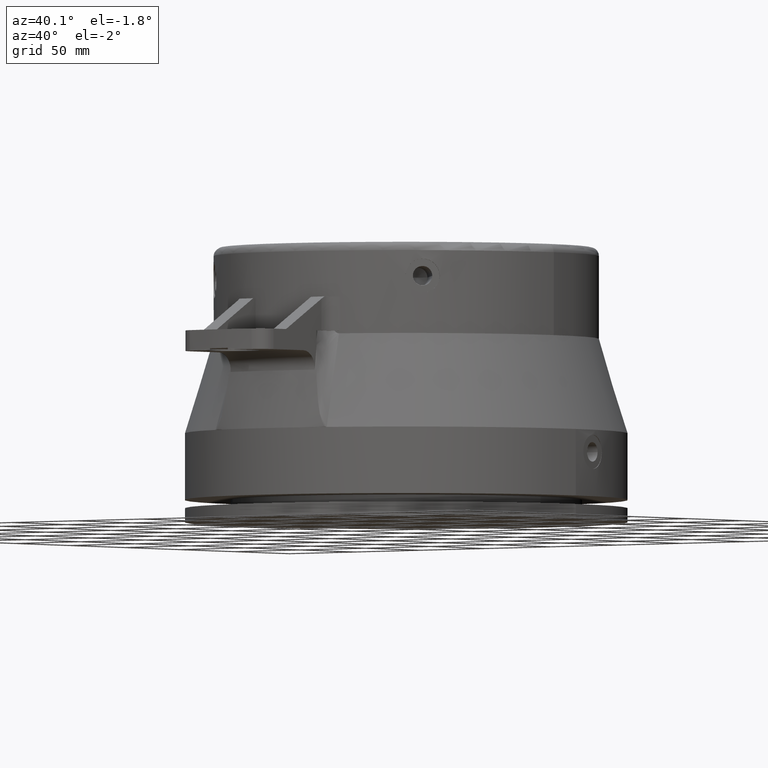
[diagram: clean part render]
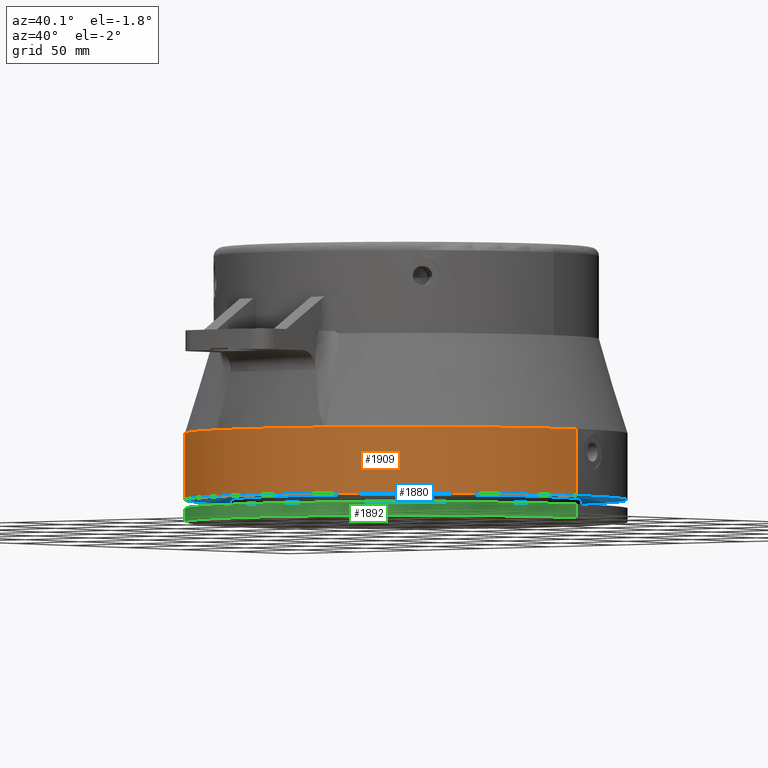
[diagram: same view with three faces highlighted in distinct colors, each labeled with its STEP entity id]
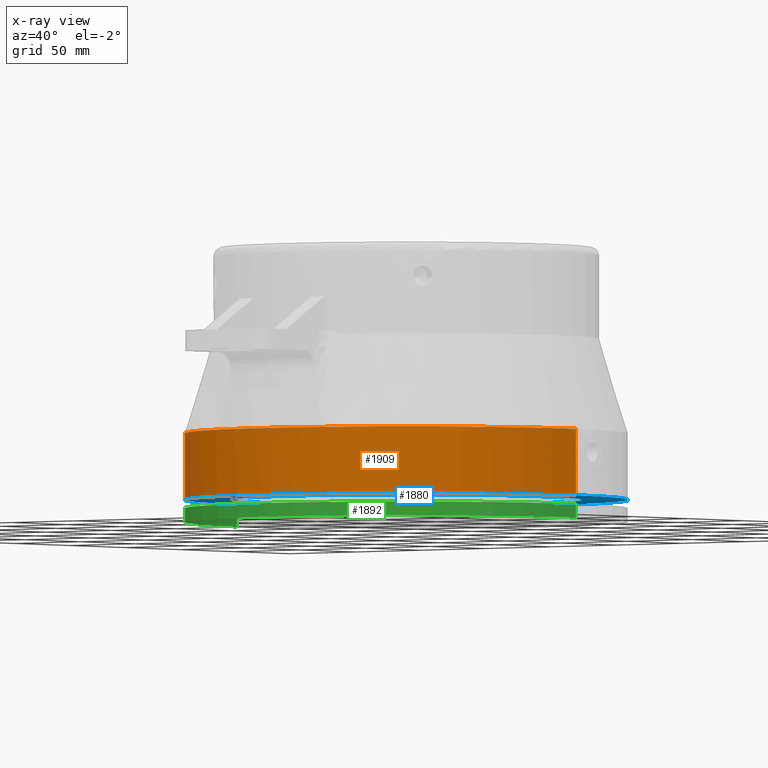
[diagram: x-ray of the same camera — body ghosted, the three highlighted faces saturated]
A machine part, auxiliary view with three faces highlighted in distinct colors.
The next image is the same camera in x-ray (body ghosted, the three faces saturated) — at least one of them is partly hidden behind the body in this view.
Their STEP definitions:

[orange] entity #1909 — the highlighted cylindrical surface (partial cylindrical patch) has radius 130 mm, axis along (0, 0, 1).
#375=DIRECTION('',(0.E0,0.E0,1.E0));
#376=VECTOR('',#375,3.9E1);
#377=CARTESIAN_POINT('',(1.3E2,0.E0,-1.48E2));
#378=LINE('',#377,#376);
#379=DIRECTION('',(0.E0,0.E0,1.E0));
#380=VECTOR('',#379,3.9E1);
#381=CARTESIAN_POINT('',(-1.3E2,0.E0,-1.48E2));
#382=LINE('',#381,#380);
#499=CARTESIAN_POINT('',(2.718715894107E-14,0.E0,-1.48E2));
#500=DIRECTION('',(0.E0,0.E0,1.E0));
#501=DIRECTION('',(-1.E0,0.E0,0.E0));
#502=AXIS2_PLACEMENT_3D('',#499,#500,#501);
#543=CARTESIAN_POINT('',(0.E0,0.E0,-1.09E2));
#544=DIRECTION('',(0.E0,0.E0,-1.E0));
#545=DIRECTION('',(3.273659809825E-1,-9.448976211714E-1,0.E0));
#546=AXIS2_PLACEMENT_3D('',#543,#544,#545);
#1215=CARTESIAN_POINT('',(-4.255757752755E1,-1.228366907519E2,
-1.089999999946E2));
#1217=CARTESIAN_POINT('',(2.002297516606E-14,0.E0,-1.09E2));
#1218=DIRECTION('',(0.E0,0.E0,1.E0));
#1219=DIRECTION('',(-1.E0,0.E0,0.E0));
#1220=AXIS2_PLACEMENT_3D('',#1217,#1218,#1219);
#1227=CARTESIAN_POINT('',(2.002297516606E-14,0.E0,-1.09E2));
#1228=DIRECTION('',(0.E0,0.E0,1.E0));
#1229=DIRECTION('',(3.273659809825E-1,-9.448976211714E-1,0.E0));
#1230=AXIS2_PLACEMENT_3D('',#1227,#1228,#1229);
#1232=CARTESIAN_POINT('',(4.255757752762E1,-1.228366907519E2,
-1.089999999952E2));
#1520=CARTESIAN_POINT('',(-1.3E2,0.E0,-1.09E2));
#1521=CARTESIAN_POINT('',(1.3E2,1.592040838892E-14,-1.09E2));
#1522=VERTEX_POINT('',#1520);
#1523=VERTEX_POINT('',#1521);
#1616=VERTEX_POINT('',#1215);
#1619=VERTEX_POINT('',#1232);
#1712=CARTESIAN_POINT('',(-1.3E2,0.E0,-1.48E2));
#1713=CARTESIAN_POINT('',(1.3E2,-1.592040838892E-14,-1.48E2));
#1714=VERTEX_POINT('',#1712);
#1715=VERTEX_POINT('',#1713);
#1893=CARTESIAN_POINT('',(3.105398120938E-14,0.E0,-1.6905E2));
#1894=DIRECTION('',(0.E0,0.E0,1.E0));
#1895=DIRECTION('',(-1.E0,0.E0,0.E0));
#1896=AXIS2_PLACEMENT_3D('',#1893,#1894,#1895);
#1897=CYLINDRICAL_SURFACE('',#1896,1.3E2);
#1899=ORIENTED_EDGE('',*,*,#1898,.F.);
#1901=ORIENTED_EDGE('',*,*,#1900,.T.);
#1902=ORIENTED_EDGE('',*,*,#1794,.F.);
#1903=ORIENTED_EDGE('',*,*,#1871,.F.);
#1904=ORIENTED_EDGE('',*,*,#1798,.T.);
#1906=ORIENTED_EDGE('',*,*,#1905,.T.);
#1907=EDGE_LOOP('',(#1899,#1901,#1902,#1903,#1904,#1906));
#1908=FACE_OUTER_BOUND('',#1907,.F.);
#503=CIRCLE('',#502,1.3E2);
#547=CIRCLE('',#546,1.3E2);
#1221=CIRCLE('',#1220,1.3E2);
#1231=CIRCLE('',#1230,1.3E2);
#1794=EDGE_CURVE('',#1715,#1523,#378,.T.);
#1798=EDGE_CURVE('',#1714,#1522,#382,.T.);
#1871=EDGE_CURVE('',#1714,#1715,#503,.T.);
#1898=EDGE_CURVE('',#1619,#1616,#547,.T.);
#1900=EDGE_CURVE('',#1619,#1523,#1231,.T.);
#1905=EDGE_CURVE('',#1522,#1616,#1221,.T.);
#1909=ADVANCED_FACE('',(#1908),#1897,.T.);

[blue] entity #1880 — the highlighted planar face has unit normal (0, 0, 1).
#370=CARTESIAN_POINT('',(2.718715894107E-14,0.E0,-1.48E2));
#371=DIRECTION('',(0.E0,0.E0,1.E0));
#372=DIRECTION('',(1.E0,0.E0,0.E0));
#373=AXIS2_PLACEMENT_3D('',#370,#371,#372);
#479=CARTESIAN_POINT('',(0.E0,0.E0,-1.48E2));
#480=DIRECTION('',(0.E0,0.E0,-1.E0));
#481=DIRECTION('',(1.E0,0.E0,0.E0));
#482=AXIS2_PLACEMENT_3D('',#479,#480,#481);
#484=CARTESIAN_POINT('',(0.E0,0.E0,-1.48E2));
#485=DIRECTION('',(0.E0,0.E0,1.E0));
#486=DIRECTION('',(1.E0,0.E0,0.E0));
#487=AXIS2_PLACEMENT_3D('',#484,#485,#486);
#499=CARTESIAN_POINT('',(2.718715894107E-14,0.E0,-1.48E2));
#500=DIRECTION('',(0.E0,0.E0,1.E0));
#501=DIRECTION('',(-1.E0,0.E0,0.E0));
#502=AXIS2_PLACEMENT_3D('',#499,#500,#501);
#1701=CARTESIAN_POINT('',(1.03E2,0.E0,-1.48E2));
#1703=VERTEX_POINT('',#1701);
#1705=CARTESIAN_POINT('',(-1.03E2,0.E0,-1.48E2));
#1707=VERTEX_POINT('',#1705);
#1712=CARTESIAN_POINT('',(-1.3E2,0.E0,-1.48E2));
#1713=CARTESIAN_POINT('',(1.3E2,-1.592040838892E-14,-1.48E2));
#1714=VERTEX_POINT('',#1712);
#1715=VERTEX_POINT('',#1713);
#1866=CARTESIAN_POINT('',(0.E0,0.E0,-1.48E2));
#1867=DIRECTION('',(0.E0,0.E0,1.E0));
#1868=DIRECTION('',(-1.E0,0.E0,0.E0));
#1869=AXIS2_PLACEMENT_3D('',#1866,#1867,#1868);
#1870=PLANE('',#1869);
#1872=ORIENTED_EDGE('',*,*,#1871,.T.);
#1873=ORIENTED_EDGE('',*,*,#1792,.T.);
#1874=EDGE_LOOP('',(#1872,#1873));
#1875=FACE_OUTER_BOUND('',#1874,.F.);
#1876=ORIENTED_EDGE('',*,*,#1861,.T.);
#1877=ORIENTED_EDGE('',*,*,#1845,.F.);
#1878=EDGE_LOOP('',(#1876,#1877));
#1879=FACE_BOUND('',#1878,.F.);
#374=CIRCLE('',#373,1.3E2);
#483=CIRCLE('',#482,1.03E2);
#488=CIRCLE('',#487,1.03E2);
#503=CIRCLE('',#502,1.3E2);
#1792=EDGE_CURVE('',#1715,#1714,#374,.T.);
#1845=EDGE_CURVE('',#1703,#1707,#488,.T.);
#1861=EDGE_CURVE('',#1703,#1707,#483,.T.);
#1871=EDGE_CURVE('',#1714,#1715,#503,.T.);
#1880=ADVANCED_FACE('',(#1875,#1879),#1870,.F.);

[green] entity #1892 — the highlighted cylindrical surface (partial cylindrical patch) has radius 130 mm, axis along (0, 0, 1).
#357=DIRECTION('',(0.E0,0.E0,1.E0));
#358=VECTOR('',#357,8.E0);
#359=CARTESIAN_POINT('',(-1.3E2,0.E0,-1.61E2));
#360=LINE('',#359,#358);
#366=DIRECTION('',(0.E0,0.E0,1.E0));
#367=VECTOR('',#366,8.E0);
#368=CARTESIAN_POINT('',(1.3E2,-1.924386576017E-14,-1.61E2));
#369=LINE('',#368,#367);
#489=CARTESIAN_POINT('',(2.810564404043E-14,0.E0,-1.53E2));
#490=DIRECTION('',(0.E0,0.E0,1.E0));
#491=DIRECTION('',(-1.E0,0.E0,0.E0));
#492=AXIS2_PLACEMENT_3D('',#489,#490,#491);
#494=CARTESIAN_POINT('',(2.957522019941E-14,0.E0,-1.61E2));
#495=DIRECTION('',(0.E0,0.E0,1.E0));
#496=DIRECTION('',(-1.E0,0.E0,0.E0));
#497=AXIS2_PLACEMENT_3D('',#494,#495,#496);
#1516=CARTESIAN_POINT('',(-1.3E2,0.E0,-1.61E2));
#1517=CARTESIAN_POINT('',(1.3E2,-1.592040838892E-14,-1.61E2));
#1518=VERTEX_POINT('',#1516);
#1519=VERTEX_POINT('',#1517);
#1708=CARTESIAN_POINT('',(-1.3E2,0.E0,-1.53E2));
#1709=CARTESIAN_POINT('',(1.3E2,-1.592040838892E-14,-1.53E2));
#1710=VERTEX_POINT('',#1708);
#1711=VERTEX_POINT('',#1709);
#1881=CARTESIAN_POINT('',(3.105398120938E-14,0.E0,-1.6905E2));
#1882=DIRECTION('',(0.E0,0.E0,1.E0));
#1883=DIRECTION('',(-1.E0,0.E0,0.E0));
#1884=AXIS2_PLACEMENT_3D('',#1881,#1882,#1883);
#1885=CYLINDRICAL_SURFACE('',#1884,1.3E2);
#1886=ORIENTED_EDGE('',*,*,#1814,.T.);
#1887=ORIENTED_EDGE('',*,*,#1782,.F.);
#1888=ORIENTED_EDGE('',*,*,#1749,.F.);
#1889=ORIENTED_EDGE('',*,*,#1779,.T.);
#1890=EDGE_LOOP('',(#1886,#1887,#1888,#1889));
#1891=FACE_OUTER_BOUND('',#1890,.F.);
#493=CIRCLE('',#492,1.3E2);
#498=CIRCLE('',#497,1.3E2);
#1749=EDGE_CURVE('',#1518,#1519,#498,.T.);
#1779=EDGE_CURVE('',#1518,#1710,#360,.T.);
#1782=EDGE_CURVE('',#1519,#1711,#369,.T.);
#1814=EDGE_CURVE('',#1710,#1711,#493,.T.);
#1892=ADVANCED_FACE('',(#1891),#1885,.T.);